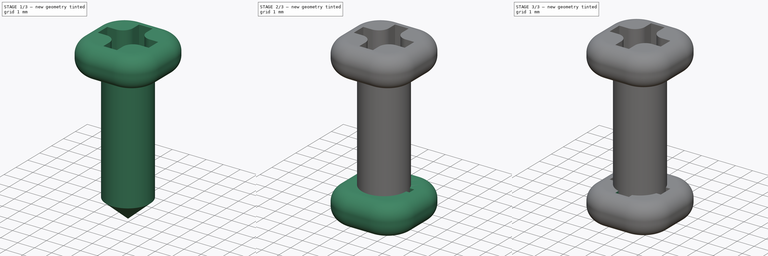
[diagram: build sequence overview — one tinted view per stage of 3, left to right]
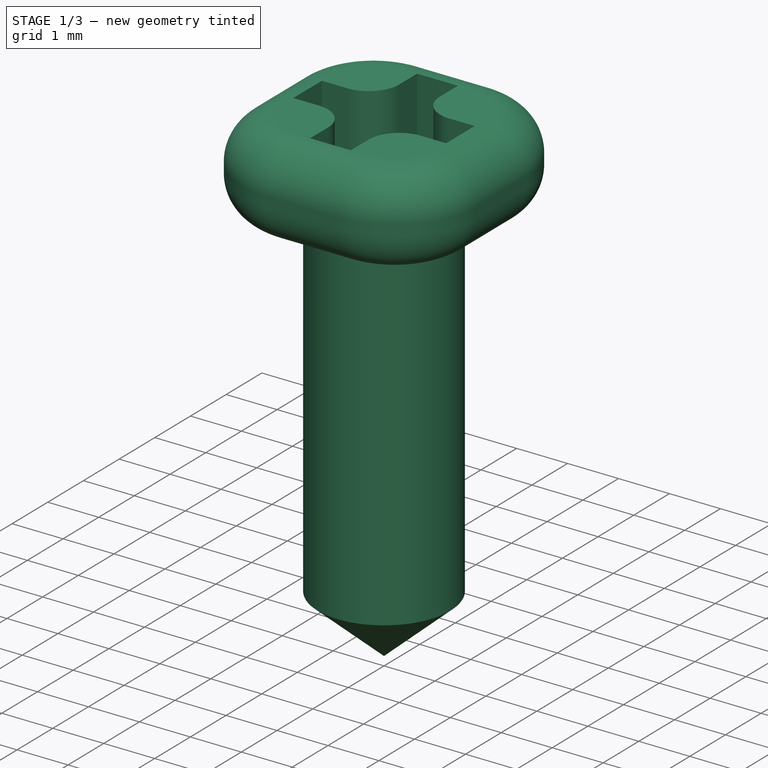
[diagram: stage 1 of 3 — iso view after this stage's code; geometry added in this stage tinted green]
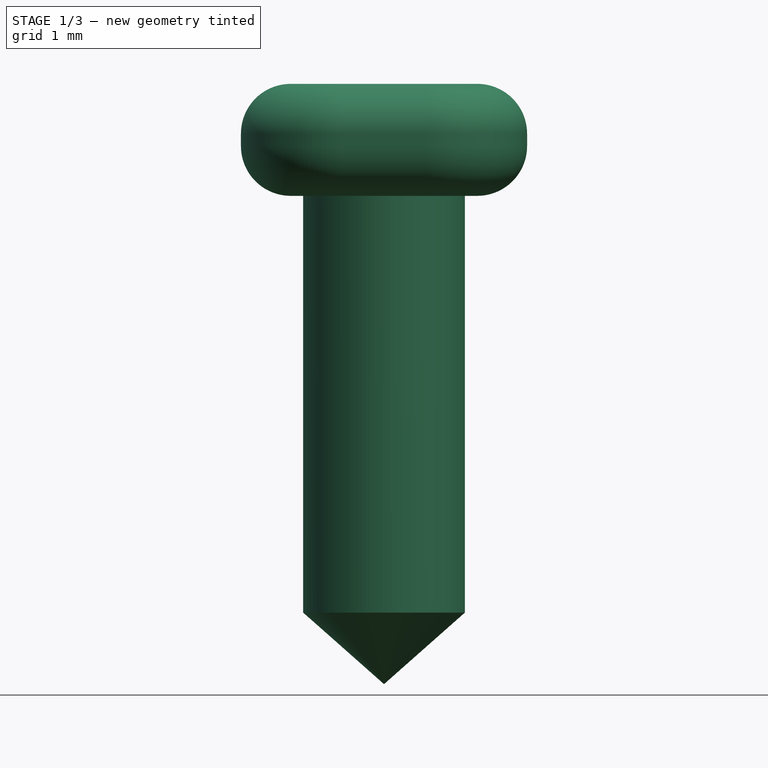
[diagram: stage 1 of 3 — front view after this stage's code; geometry added in this stage tinted green]
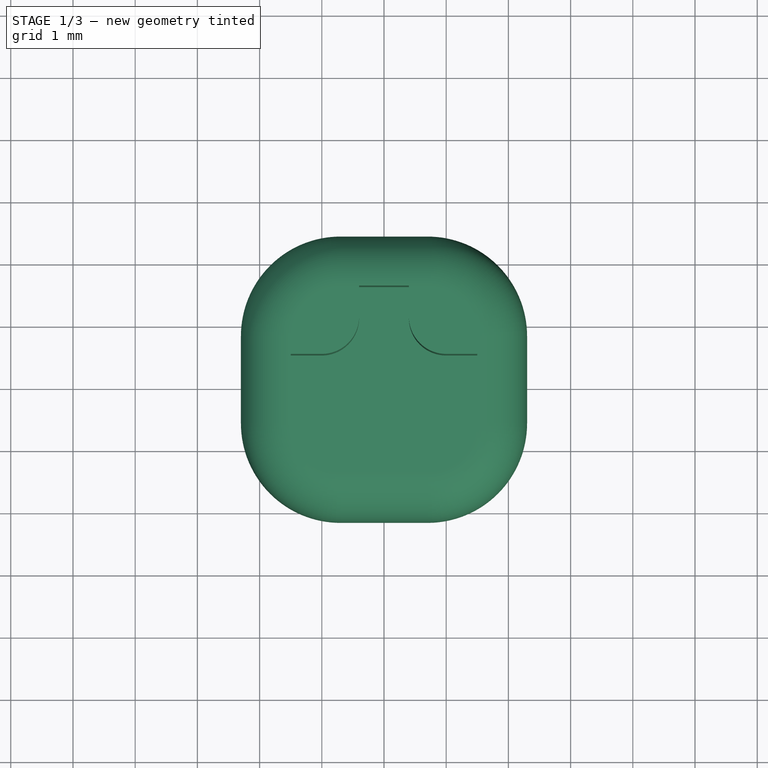
[diagram: stage 1 of 3 — top view after this stage's code; geometry added in this stage tinted green]
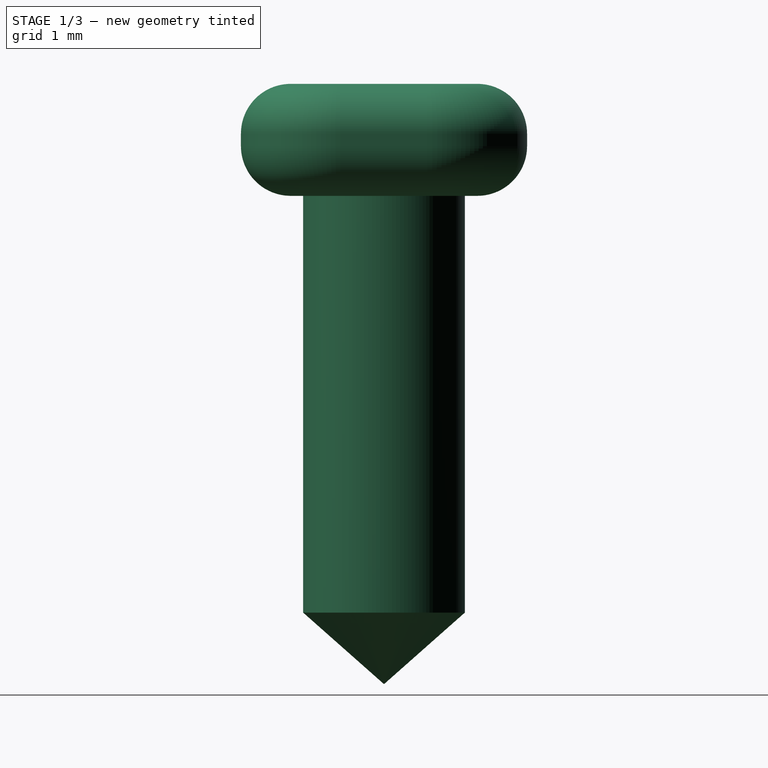
[diagram: stage 1 of 3 — right view after this stage's code; geometry added in this stage tinted green]
FCSTD DOCUMENT  (FreeCAD 0.14R3702 (Git))
Label: SM-S4303R-shaft-screw
License: CC-BY 3.0
LicenseURL: http://creativecommons.org/licenses/by/3.0/
objects: Sketcher::SketchObject×4, PartDesign::Pad×2, Part::Fillet×1, PartDesign::Pocket×1, PartDesign::Mirrored×1, PartDesign::Revolution×1, Part::Feature×1, Part::MultiFuse×1
note: 16 computed .brp shape members not serialized (recipe doc carries the construction recipe); baked Part::Feature solids carry a one-line shape summary decoded from their .brp

FEATURE [Sketcher::SketchObject] Sketch003  label="body-sketch"
  Placement = pos=(0,0,0) rot=(-1,0,0;4.71239rad)
  sketch-geometry (4):
    g0: LineSegment StartX=0 StartY=0 StartZ=0 EndX=1.3 EndY=1.15 EndZ=0
    g1: LineSegment StartX=1.3 StartY=1.15 StartZ=0 EndX=1.3 EndY=7.75 EndZ=0
    g2: LineSegment StartX=1.3 StartY=7.75 StartZ=0 EndX=0 EndY=7.75 EndZ=0
    g3: LineSegment StartX=0 StartY=7.75 StartZ=0 EndX=0 EndY=0 EndZ=0
  constraints (11):
    c: Coincident(g-1,g0)
    c: Coincident(g0,g1)
    c: Vertical(g1)
    c: Coincident(g1,g2)
    c: Horizontal(g2)
    c: Coincident(g2,g3)
    c: Coincident(g3,g0)
    c: Vertical(g3)
    c: DistanceY(g3) = -7.75
    c: DistanceY(g1) = 6.6
    c: DistanceX(g2) = -1.3
FEATURE [PartDesign::Revolution] Revolution
  Angle = 360
  Axis = (0,0,1)
  Base = (0,0,0)
  Placement = pos=(0,0,0) rot=(-1,0,0;4.71239rad)
  ReferenceAxis = -> Sketch003 [V_Axis]
  Reversed = true
  Sketch = -> Sketch003
FEATURE [Part::Feature] Pad001001  label="head"
  Placement = pos=(0,0,7.85) rot=(0,0,1;0rad)
  shape: bbox 4.864 x 4.864 x 1.9 mm, 48 faces (baked)
FEATURE [Part::MultiFuse] Fusion  label="Shaft-screw-final-1"
  Shapes = -> [Revolution,Pad001001]
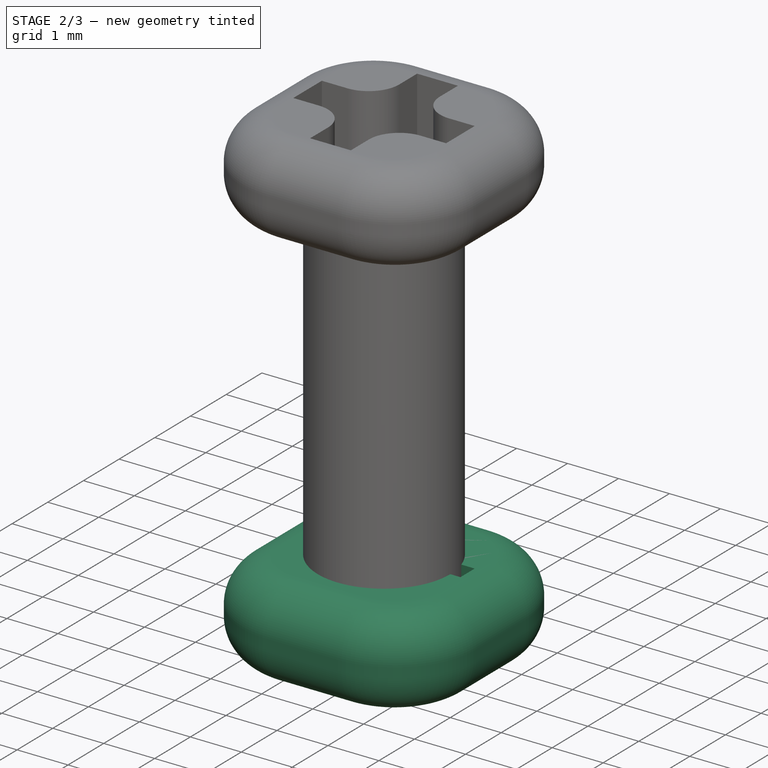
[diagram: stage 2 of 3 — iso view after this stage's code; geometry added in this stage tinted green]
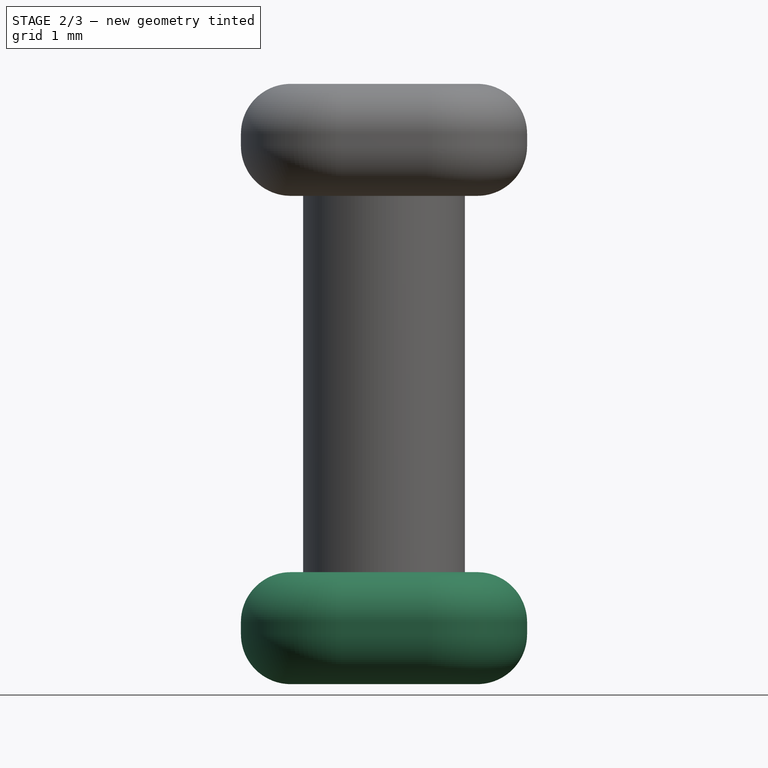
[diagram: stage 2 of 3 — front view after this stage's code; geometry added in this stage tinted green]
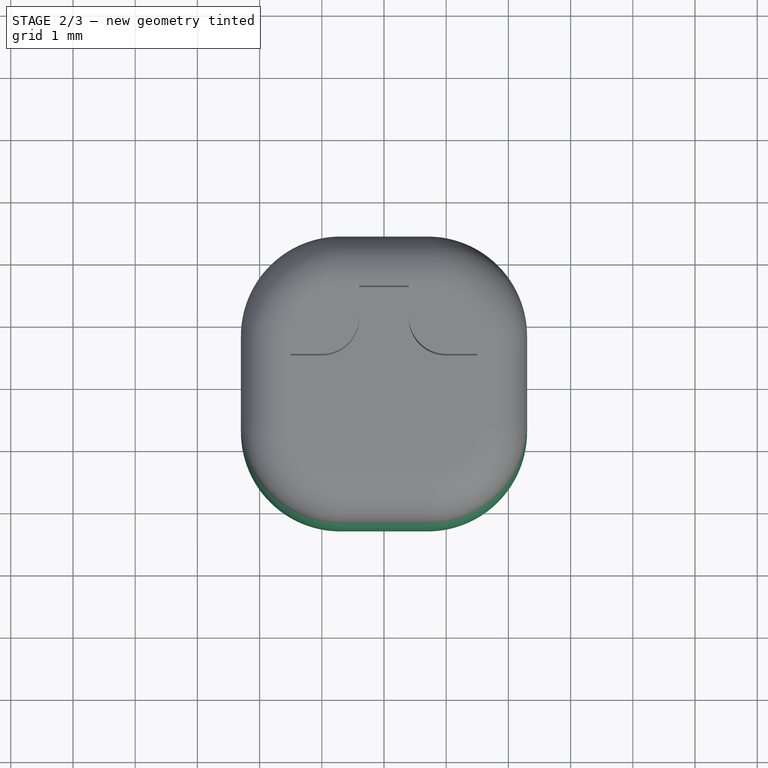
[diagram: stage 2 of 3 — top view after this stage's code; geometry added in this stage tinted green]
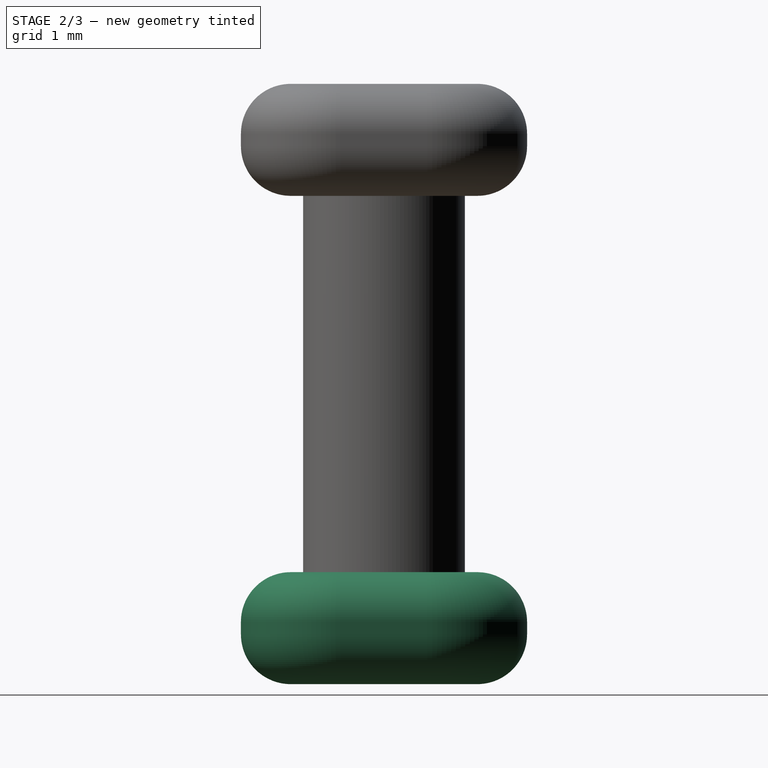
[diagram: stage 2 of 3 — right view after this stage's code; geometry added in this stage tinted green]
FEATURE [Sketcher::SketchObject] Sketch  label="head-body-sketch"
  sketch-geometry (12):
    g0: LineSegment StartX=-0.7 StartY=2.3 StartZ=0 EndX=0.7 EndY=2.3 EndZ=0
    g1: LineSegment StartX=2.3 StartY=0.7 StartZ=0 EndX=2.3 EndY=-0.7 EndZ=0
    g2: LineSegment StartX=0.7 StartY=-2.3 StartZ=0 EndX=-0.7 EndY=-2.3 EndZ=0
    g3: LineSegment StartX=-2.3 StartY=-0.7 StartZ=0 EndX=-2.3 EndY=0.7 EndZ=0
    g4: ArcOfCircle CenterX=-0.7 CenterY=0.7 CenterZ=0 NormalX=0 NormalY=0 NormalZ=1 Radius=1.6 StartAngle=1.5708 EndAngle=3.14159
    g5: ArcOfCircle CenterX=0.7 CenterY=0.7 CenterZ=0 NormalX=0 NormalY=0 NormalZ=1 Radius=1.6 StartAngle=0 EndAngle=1.5708
    g6: ArcOfCircle CenterX=0.7 CenterY=-0.7 CenterZ=0 NormalX=0 NormalY=0 NormalZ=1 Radius=1.6 StartAngle=4.71239 EndAngle=6.28319
    g7: ArcOfCircle CenterX=-0.7 CenterY=-0.7 CenterZ=0 NormalX=0 NormalY=0 NormalZ=1 Radius=1.6 StartAngle=3.14159 EndAngle=4.71239
    g8: LineSegment [constr] StartX=-0.7 StartY=0.7 StartZ=0 EndX=0.7 EndY=0.7 EndZ=0
    g9: LineSegment [constr] StartX=0.7 StartY=0.7 StartZ=0 EndX=0.7 EndY=-0.7 EndZ=0
    g10: LineSegment [constr] StartX=0.7 StartY=-0.7 StartZ=0 EndX=-0.7 EndY=-0.7 EndZ=0
    g11: LineSegment [constr] StartX=-0.7 StartY=-0.7 StartZ=0 EndX=-0.7 EndY=0.7 EndZ=0
  constraints (30):
    c: Horizontal(g0)
    c: Horizontal(g2)
    c: Vertical(g1)
    c: Vertical(g3)
    c: Equal(g3,g0)
    c: Tangent(g0,g4)
    c: Tangent(g3,g4)
    c: Tangent(g0,g5)
    c: Tangent(g1,g5)
    c: Tangent(g1,g6)
    c: Tangent(g2,g6)
    c: Tangent(g2,g7)
    c: Tangent(g3,g7)
    c: Equal(g7,g4)
    c: Equal(g4,g5)
    c: Equal(g5,g6)
    c: Coincident(g8,g9)
    c: Coincident(g9,g10)
    c: Coincident(g10,g11)
    c: Coincident(g11,g8)
    c: Horizontal(g8)
    c: Horizontal(g10)
    c: Vertical(g9)
    c: Vertical(g11)
    c: Symmetric(g8,g9,g-1)
    c: Coincident(g8,g4)
    c: Coincident(g5,g8)
    c: Coincident(g10,g7)
    c: Radius(g4) = 1.6
    c: DistanceX(g3,g1) = 4.6
FEATURE [PartDesign::Pad] Pad  label="head-body-1"
  Length = 1.8
  Length2 = 100
  Sketch = -> Sketch
  Type = 0
FEATURE [Part::Fillet] Fillet  label="head-body-2"
  Base = -> Pad
  Edges = 2 edges r=0.8: [Edge23,Edge24]
FEATURE [Sketcher::SketchObject] Sketch001  label="cross-1-sketch"
  Placement = pos=(0,0,1.8) rot=(0,0,1;0rad)
  Support = -> Fillet [Face12]
  sketch-geometry (12):
    g0: LineSegment StartX=-1.5 StartY=0 StartZ=0 EndX=1.5 EndY=0 EndZ=0
    g1: LineSegment StartX=-1.5 StartY=0 StartZ=0 EndX=-1.5 EndY=0.4 EndZ=0
    g2: LineSegment StartX=-1.5 StartY=0.4 StartZ=0 EndX=-1 EndY=0.4 EndZ=0
    g3: LineSegment StartX=-0.4 StartY=1 StartZ=0 EndX=-0.4 EndY=1.5 EndZ=0
    g4: LineSegment StartX=-0.4 StartY=1.5 StartZ=0 EndX=0.4 EndY=1.5 EndZ=0
    g5: LineSegment StartX=0.4 StartY=1.5 StartZ=0 EndX=0.4 EndY=1 EndZ=0
    g6: LineSegment StartX=1 StartY=0.4 StartZ=0 EndX=1.5 EndY=0.4 EndZ=0
    g7: LineSegment StartX=1.5 StartY=0.4 StartZ=0 EndX=1.5 EndY=0 EndZ=0
    g8: LineSegment [constr] StartX=-0.4 StartY=0 StartZ=0 EndX=0 EndY=0 EndZ=0
    g9: LineSegment [constr] StartX=0 StartY=1.5 StartZ=0 EndX=0 EndY=0 EndZ=0
    g10: ArcOfCircle CenterX=-1 CenterY=1 CenterZ=0 NormalX=0 NormalY=0 NormalZ=1 Radius=0.6 StartAngle=4.71239 EndAngle=6.28319
    g11: ArcOfCircle CenterX=1 CenterY=1 CenterZ=0 NormalX=0 NormalY=0 NormalZ=1 Radius=0.6 StartAngle=3.14159 EndAngle=4.71239
  constraints (34):
    c: Horizontal(g0)
    c: Symmetric(g0,g0,g-2)
    c: PointOnObject(g0,g-1)
    c: Coincident(g0,g1)
    c: Vertical(g1)
    c: Coincident(g1,g2)
    c: Horizontal(g2)
    c: Vertical(g3)
    c: Coincident(g3,g4)
    c: Horizontal(g4)
    c: Coincident(g4,g5)
    c: Vertical(g5)
    c: Horizontal(g6)
    c: Coincident(g6,g7)
    c: Coincident(g7,g0)
    c: Vertical(g7)
    c: Horizontal(g8)
    c: PointOnObject(g8,g-2)
    c: Equal(g8,g1)
    c: DistanceX(g0) = 3
    c: Vertical(g9)
    c: Coincident(g9,g-1)
    c: PointOnObject(g9,g4)
    c: DistanceY(g9) = -1.5
    c: Tangent(g2,g10)
    c: Tangent(g3,g10)
    c: Tangent(g5,g11)
    c: Tangent(g6,g11)
    c: Equal(g10,g11)
    c: Symmetric(g10,g11,g9)
    c: PointOnObject(g8,g3)
    c: Radius(g10) = 0.6
    c: DistanceY(g1) = 0.4
    c: PointOnObject(g8,g0)
FEATURE [PartDesign::Pocket] Pocket  label="cross-1"
  Length = 1.5
  Sketch = -> Sketch001
  Type = 0
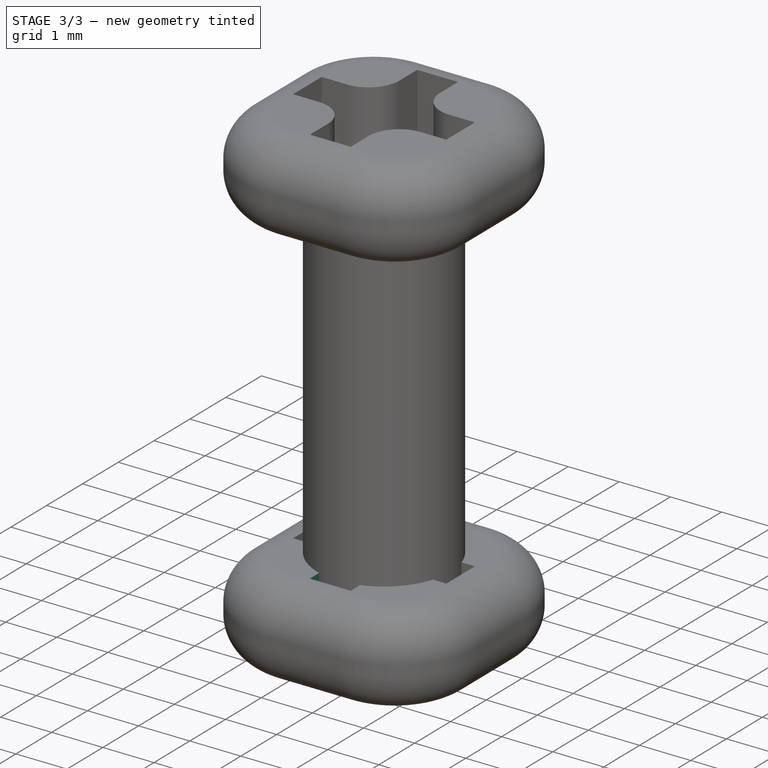
[diagram: stage 3 of 3 — iso view after this stage's code; geometry added in this stage tinted green]
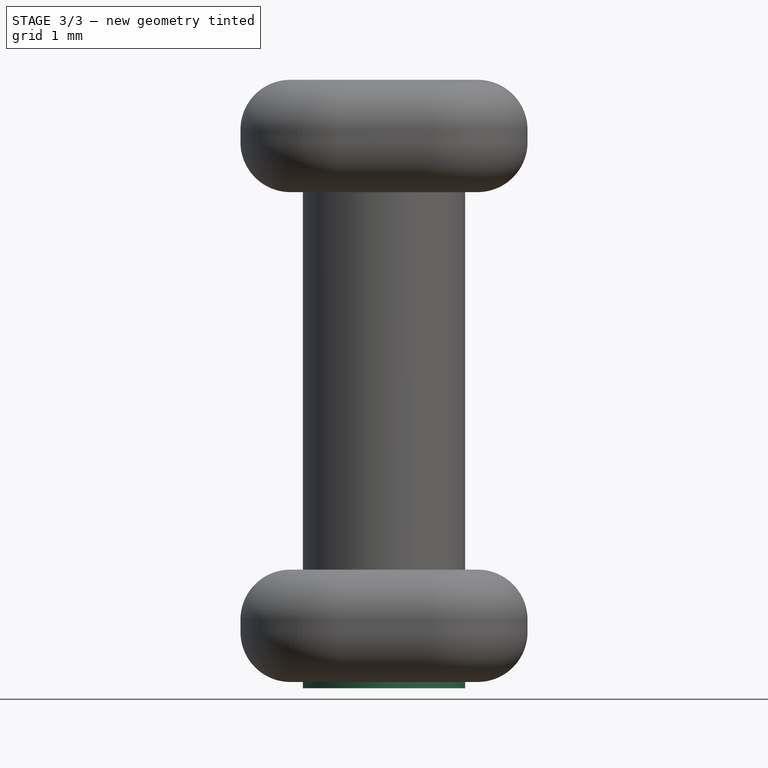
[diagram: stage 3 of 3 — front view after this stage's code; geometry added in this stage tinted green]
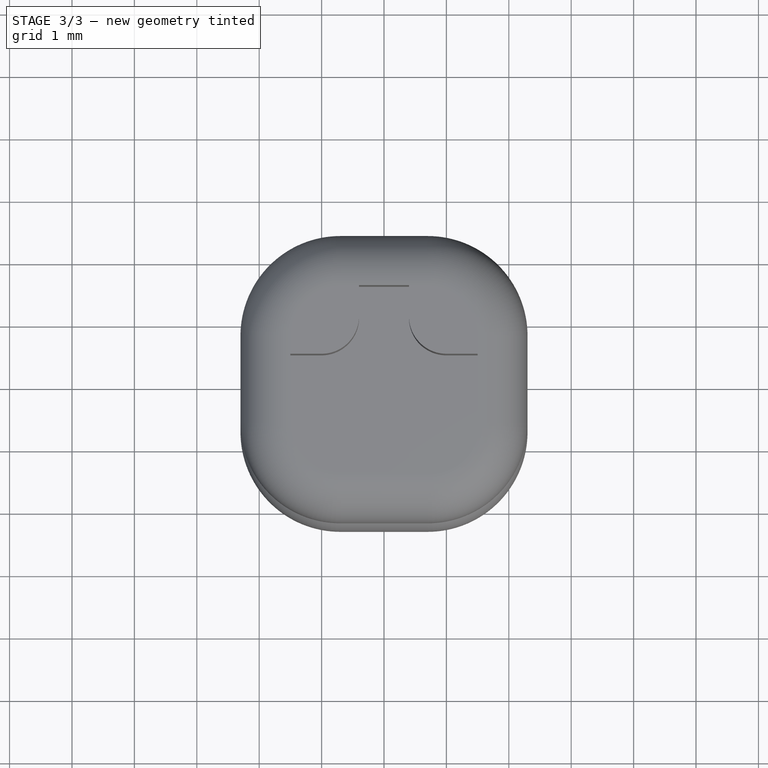
[diagram: stage 3 of 3 — top view after this stage's code; geometry added in this stage tinted green]
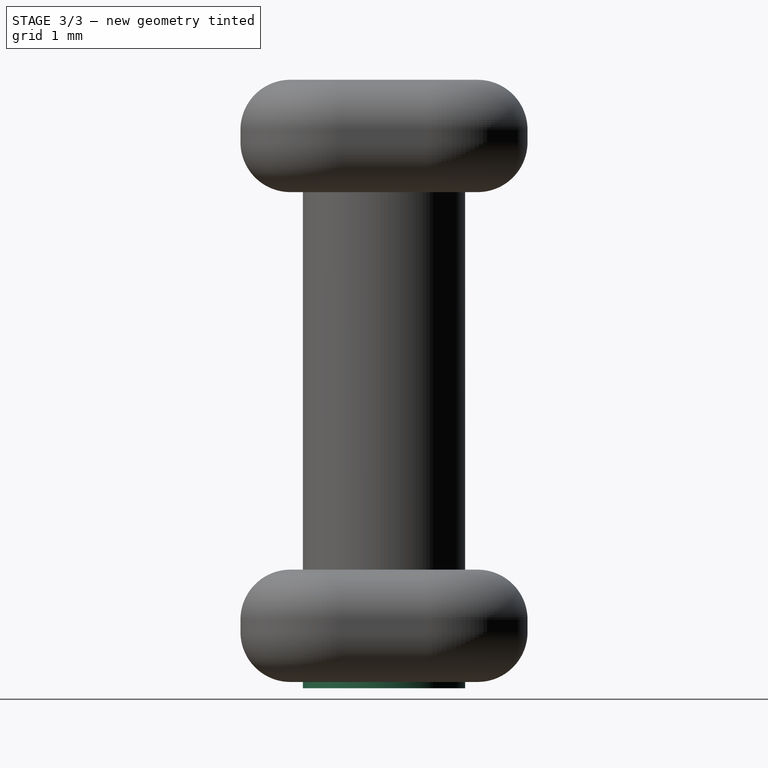
[diagram: stage 3 of 3 — right view after this stage's code; geometry added in this stage tinted green]
FEATURE [PartDesign::Mirrored] Mirrored  label="cross-2"
  MirrorPlane = -> Sketch001 [H_Axis]
  Originals = -> [Pocket]
FEATURE [Sketcher::SketchObject] Sketch002  label="body-anchor-sketch"
  Placement = pos=(0,0,0) rot=(1,0,0;3.14159rad)
  Support = -> Mirrored [Face10]
  sketch-geometry (1):
    g0: Circle CenterX=0 CenterY=0 CenterZ=0 NormalX=0 NormalY=0 NormalZ=1 Radius=1.3
  constraints (2):
    c: Coincident(g0,g-1)
    c: Radius(g0) = 1.3
FEATURE [PartDesign::Pad] Pad001  label="body-anchor"
  Length = 0.1
  Length2 = 100
  Sketch = -> Sketch002
  Type = 0
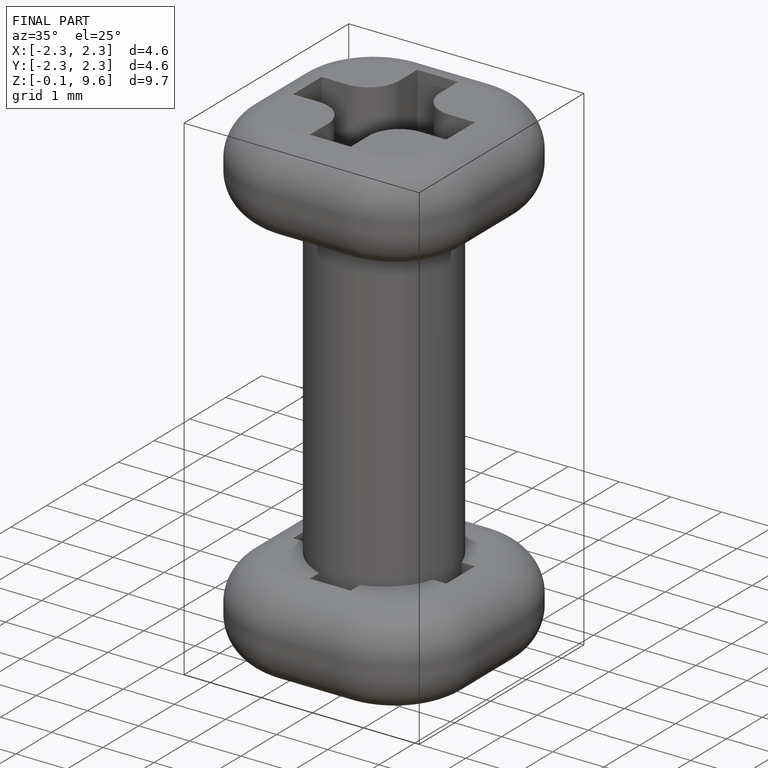
[diagram: finished part — iso view with bounding-box wireframe]
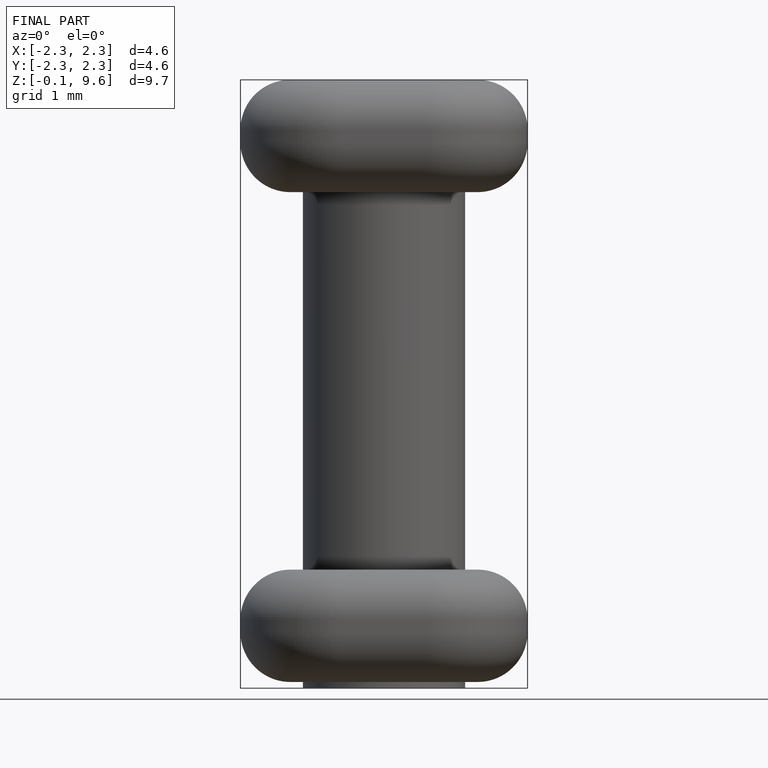
[diagram: finished part — front view with bounding-box wireframe]
